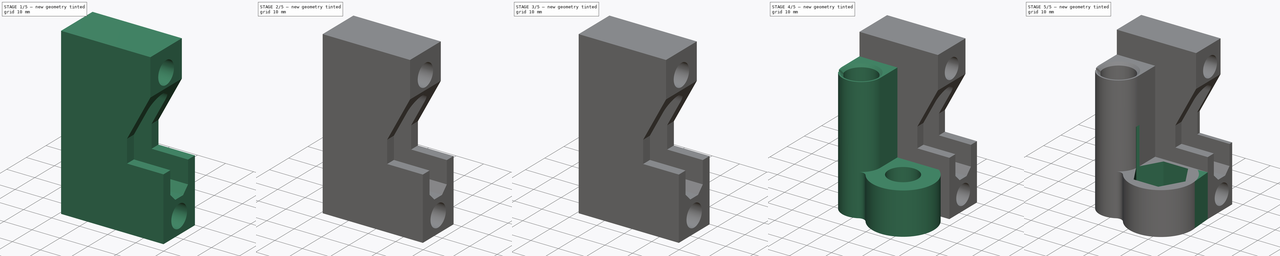
[diagram: build sequence overview — one tinted view per stage of 5, left to right]
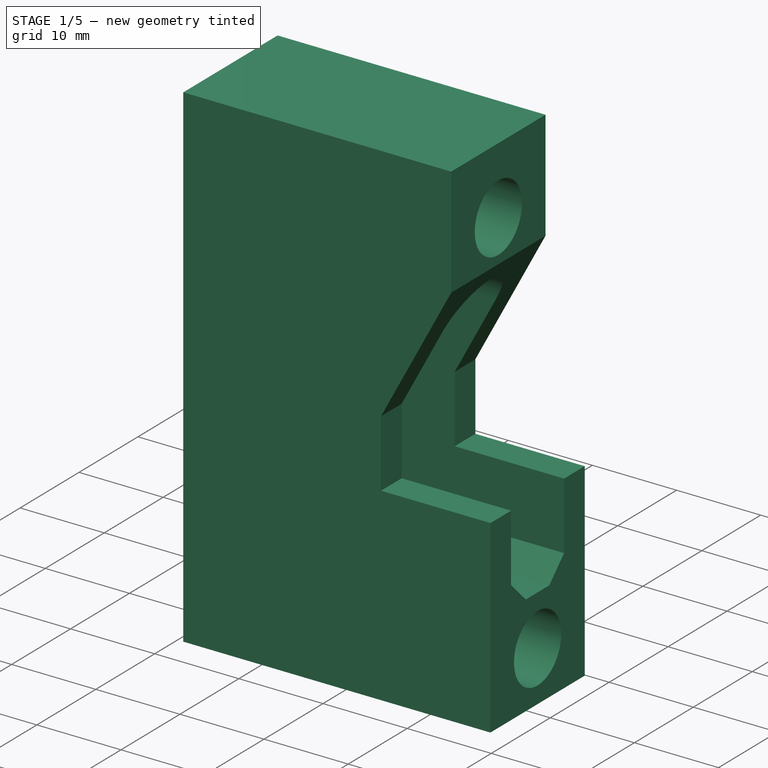
[diagram: stage 1 of 5 — iso view after this stage's code; geometry added in this stage tinted green]
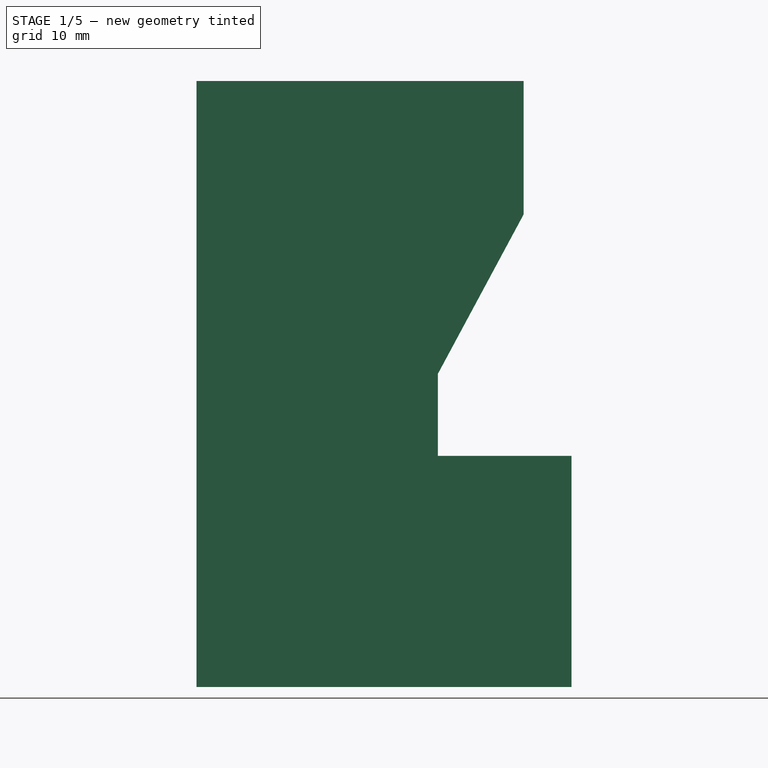
[diagram: stage 1 of 5 — front view after this stage's code; geometry added in this stage tinted green]
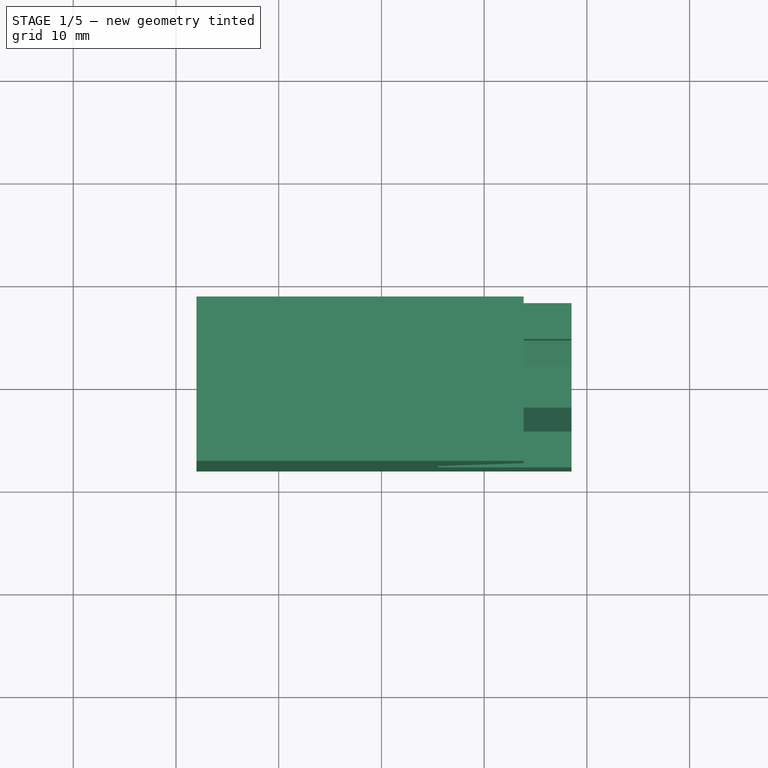
[diagram: stage 1 of 5 — top view after this stage's code; geometry added in this stage tinted green]
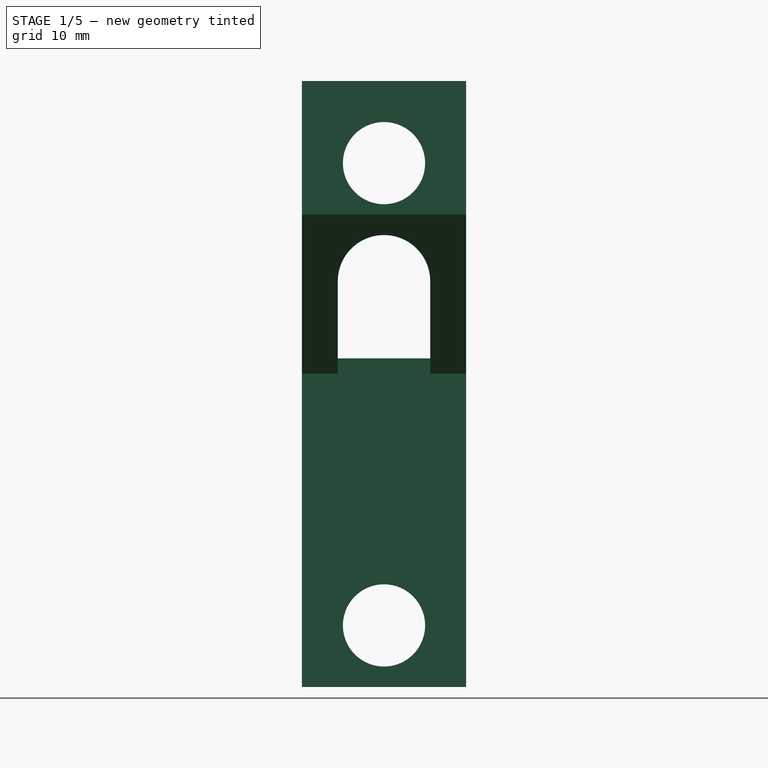
[diagram: stage 1 of 5 — right view after this stage's code; geometry added in this stage tinted green]
FCSTD DOCUMENT  (FreeCAD 0.15R4671 (Git))
Label: x-end-idler_felix_0.1
License: CC-BY 3.0
LicenseURL: http://creativecommons.org/licenses/by/3.0/
objects: Sketcher::SketchObject×12, PartDesign::Pocket×6, PartDesign::Pad×6, PartDesign::Chamfer×4, Part::Box×2, Part::MultiFuse×2, App::MeasureDistance×1
note: 44 computed .brp shape members not serialized (recipe doc carries the construction recipe); baked Part::Feature solids carry a one-line shape summary decoded from their .brp

FEATURE [Part::Box] Box  label="Cube"
  Height = 59
  Length = 36.5
  Placement = pos=(-18,-8,-28.5) rot=(0,0,1;0rad)
  Width = 16
FEATURE [Sketcher::SketchObject] Sketch
  Placement = pos=(18.5,-8,-28.5) rot=(0.57735,0.57735,0.57735;2.0944rad)
  Support = -> Box [Face2]
  sketch-geometry (8):
    g0: Circle CenterX=8 CenterY=51 CenterZ=0 NormalX=0 NormalY=0 NormalZ=1 Radius=4
    g1: Circle CenterX=8 CenterY=6 CenterZ=0 NormalX=0 NormalY=0 NormalZ=1 Radius=4
    g2: ArcOfCircle CenterX=8 CenterY=39.5 CenterZ=0 NormalX=0 NormalY=0 NormalZ=1 Radius=4.5 StartAngle=6.28318 EndAngle=9.42478
    g3: LineSegment StartX=3.5 StartY=39.5 StartZ=0 EndX=3.5 EndY=14.5 EndZ=0
    g4: LineSegment StartX=3.5 StartY=14.5 StartZ=0 EndX=6 EndY=12 EndZ=0
    g5: LineSegment StartX=6 StartY=12 StartZ=0 EndX=10 EndY=12 EndZ=0
    g6: LineSegment StartX=10 StartY=12 StartZ=0 EndX=12.5 EndY=14.5 EndZ=0
    g7: LineSegment StartX=12.5 StartY=14.5 StartZ=0 EndX=12.5 EndY=39.5 EndZ=0
  constraints (24):
    c: Equal(g0,g1)
    c: Radius(g0) = 4
    c: Tangent(g2,g3)
    c: Coincident(g3,g4)
    c: Coincident(g4,g5)
    c: Horizontal(g5)
    c: Coincident(g5,g6)
    c: Coincident(g6,g7)
    c: Coincident(g7,g2)
    c: Vertical(g7)
    c: Tangent(g7,g2)
    c: Vertical(g3)
    c: DistanceX(g0,g2) = 0
    c: DistanceX(g2,g1) = 0
    c: Angle(g5,g4) = 2.35619
    c: Equal(g4,g6)
    c: Angle(g6,g5) = 2.35619
    c: DistanceY(g-1,g1) = 6
    c: DistanceY(g0,g1) = -45
    c: Radius(g2) = 4.5
    c: DistanceX(g-2,g2) = 3.5
    c: Distance(g1,g5) = 6
    c: Distance(g5) = 4
    c: DistanceY(g2,g0) = 11.5
FEATURE [PartDesign::Pocket] Pocket
  Length = 5
  Placement = pos=(-18,-8,-28.5) rot=(0,0,1;0rad)
  Sketch = -> Sketch
  Type = 1
FEATURE [Sketcher::SketchObject] Sketch001
  Placement = pos=(-18,8,-28.5) rot=(0,0.707107,0.707107;3.14159rad)
  Support = -> Pocket [Face5]
  sketch-geometry (6):
    g0: LineSegment StartX=-36.5 StartY=59 StartZ=0 EndX=-36.5 EndY=22.5 EndZ=0
    g1: LineSegment StartX=-36.5 StartY=22.5 StartZ=0 EndX=-23.5 EndY=22.5 EndZ=0
    g2: LineSegment StartX=-23.5 StartY=22.5 StartZ=0 EndX=-23.5 EndY=30.5 EndZ=0
    g3: LineSegment StartX=-23.5 StartY=30.5 StartZ=0 EndX=-31.8373 EndY=46 EndZ=0
    g4: LineSegment StartX=-31.8373 StartY=46 StartZ=0 EndX=-31.8373 EndY=59 EndZ=0
    g5: LineSegment StartX=-31.8373 StartY=59 StartZ=0 EndX=-36.5 EndY=59 EndZ=0
  constraints (16):
    c: Coincident(g0,g1)
    c: Horizontal(g1)
    c: Coincident(g1,g2)
    c: Vertical(g2)
    c: Coincident(g2,g3)
    c: Coincident(g3,g4)
    c: Coincident(g4,g5)
    c: Vertical(g4)
    c: Distance(g2) = 8
    c: Distance(g3) = 17.6
    c: Distance(g4) = 13
    c: Distance(g1) = 13
    c: Coincident(g0,g5)
    c: Distance(g0) = 36.5
    c: Horizontal(g5)
    c: Vertical(g0)
FEATURE [PartDesign::Pocket] Pocket001
  Length = 5
  Placement = pos=(-18,-8,-28.5) rot=(0,0,1;0rad)
  Sketch = -> Sketch001
  Type = 1
FEATURE [Part::Box] Box001  label="Cube001"
  Height = 21
  Length = 2
  Placement = pos=(-18,-5,-17.5) rot=(0,0,1;0rad)
  Width = 10
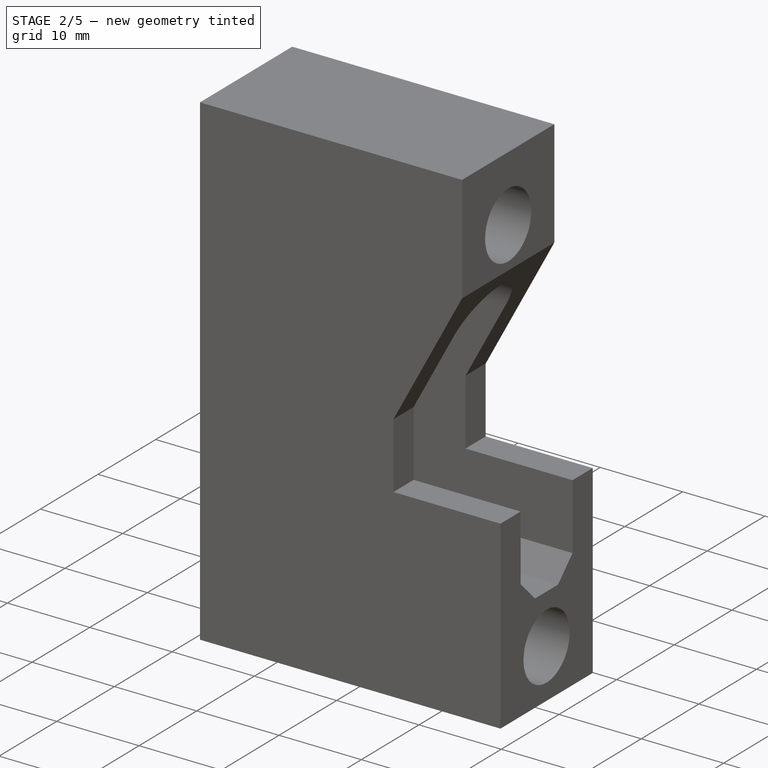
[diagram: stage 2 of 5 — iso view after this stage's code; geometry added in this stage tinted green]
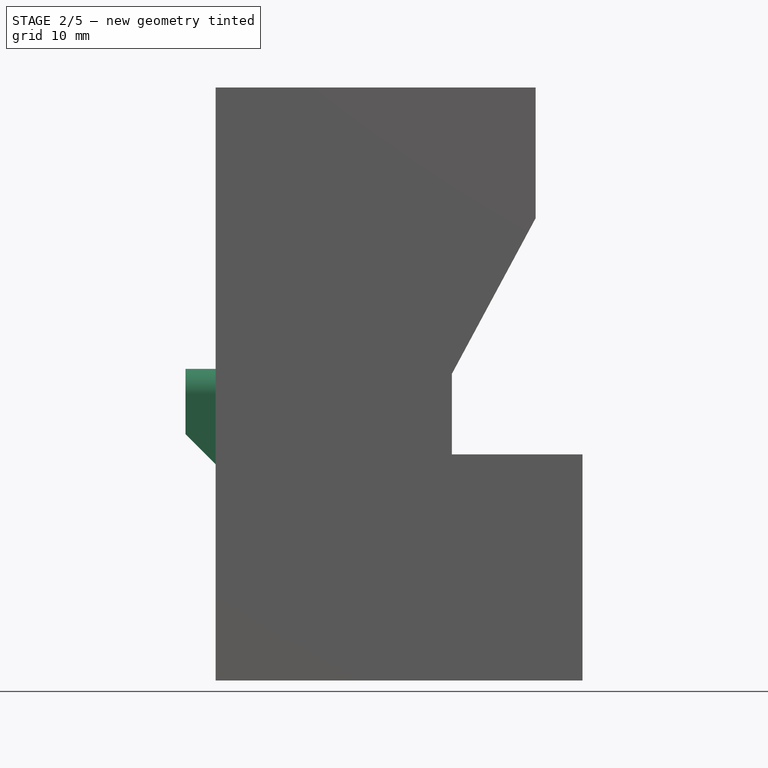
[diagram: stage 2 of 5 — front view after this stage's code; geometry added in this stage tinted green]
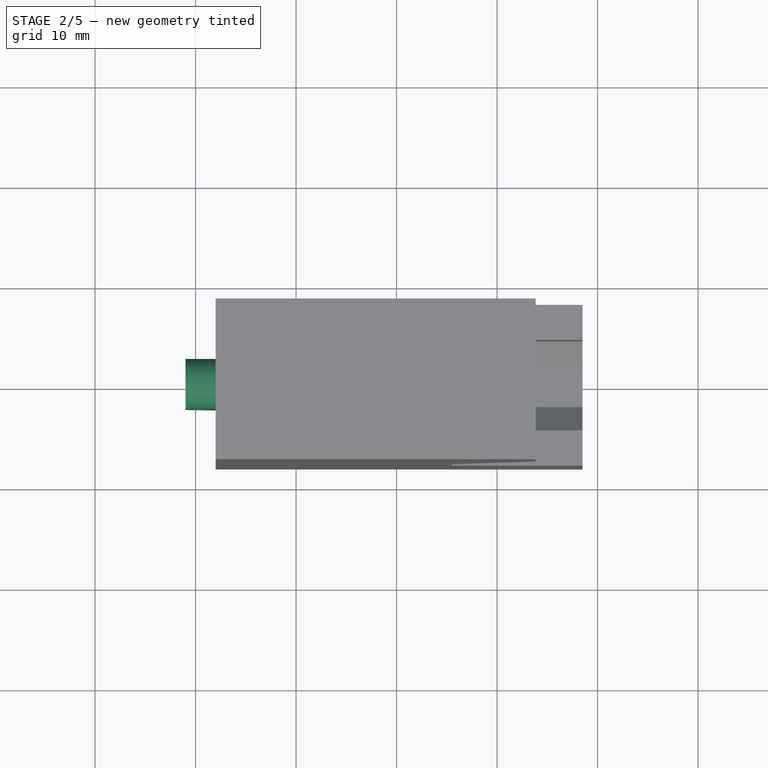
[diagram: stage 2 of 5 — top view after this stage's code; geometry added in this stage tinted green]
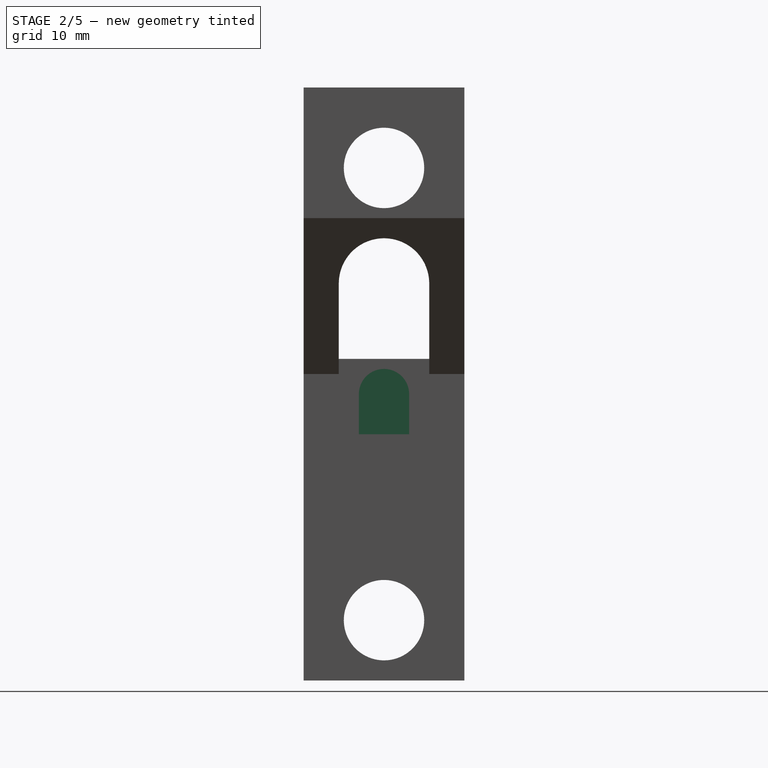
[diagram: stage 2 of 5 — right view after this stage's code; geometry added in this stage tinted green]
FEATURE [Part::MultiFuse] Fusion
  Shapes = -> [Box001,Pocket001]
FEATURE [Sketcher::SketchObject] Sketch003
  Placement = pos=(-18,0,0) rot=(0.57735,-0.57735,-0.57735;2.0944rad)
  Support = -> Fusion [Face24]
  sketch-geometry (4):
    g0: LineSegment StartX=-2.5 StartY=0 StartZ=0 EndX=-2.5 EndY=-4 EndZ=0
    g1: LineSegment StartX=-2.5 StartY=-4 StartZ=0 EndX=2.5 EndY=-4 EndZ=0
    g2: LineSegment StartX=2.5 StartY=-4 StartZ=0 EndX=2.5 EndY=0 EndZ=0
    g3: ArcOfCircle CenterX=0 CenterY=0 CenterZ=0 NormalX=0 NormalY=0 NormalZ=1 Radius=2.5 StartAngle=0 EndAngle=3.14159
  constraints (10):
    c: Vertical(g0)
    c: Coincident(g0,g1)
    c: Horizontal(g1)
    c: Coincident(g1,g2)
    c: Vertical(g2)
    c: Tangent(g3,g2)
    c: Tangent(g3,g0)
    c: Coincident(g3,g-1)
    c: Radius(g3) = 2.5
    c: Distance(g-1,g1) = 4
FEATURE [PartDesign::Pad] Pad
  Length = 3
  Length2 = 100
  Sketch = -> Sketch003
  Type = 0
FEATURE [Sketcher::SketchObject] Sketch004
  Placement = pos=(-16,0,0) rot=(0.57735,0.57735,0.57735;2.0944rad)
  Support = -> Pad [Face10]
  sketch-geometry (4):
    g0: ArcOfCircle CenterX=0 CenterY=0 CenterZ=0 NormalX=0 NormalY=0 NormalZ=1 Radius=2.5 StartAngle=0 EndAngle=3.14159
    g1: LineSegment StartX=-2.5 StartY=0 StartZ=0 EndX=-2.5 EndY=-4 EndZ=0
    g2: LineSegment StartX=-2.5 StartY=-4 StartZ=0 EndX=2.5 EndY=-4 EndZ=0
    g3: LineSegment StartX=2.5 StartY=-4 StartZ=0 EndX=2.5 EndY=0 EndZ=0
  constraints (11):
    c: Coincident(g0,g-1)
    c: PointOnObject(g0,g-1)
    c: PointOnObject(g0,g-1)
    c: Radius(g0) = 2.5
    c: Tangent(g0,g1)
    c: Coincident(g1,g2)
    c: Horizontal(g2)
    c: Coincident(g2,g3)
    c: Coincident(g3,g0)
    c: Vertical(g3)
    c: Distance(g-1,g2) = 4
FEATURE [PartDesign::Pad] Pad001
  Length = 3
  Length2 = 100
  Sketch = -> Sketch004
  Type = 0
FEATURE [PartDesign::Chamfer] Chamfer
  Base = -> Pad001 [Edge8]
  Size = 2.999
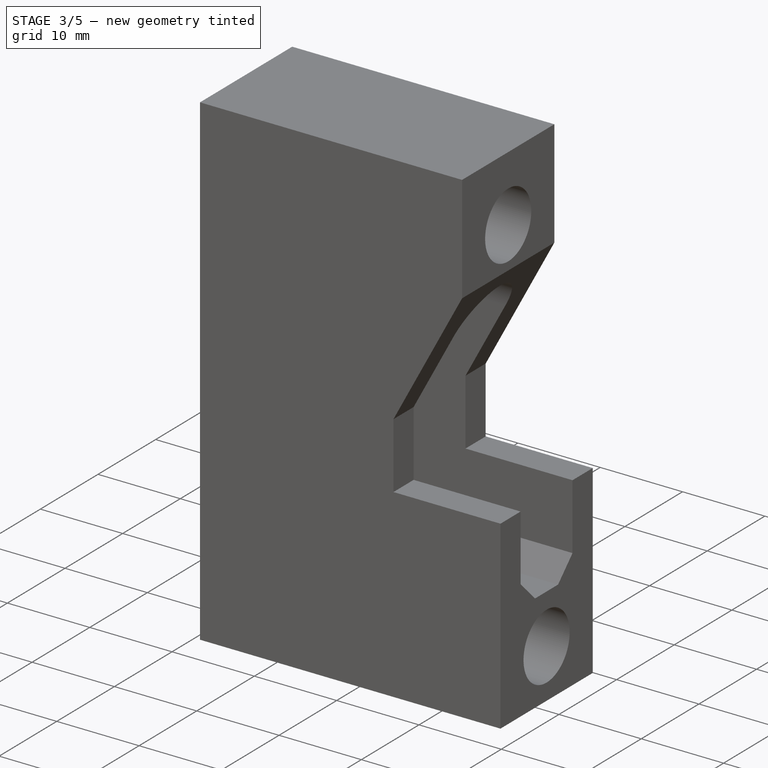
[diagram: stage 3 of 5 — iso view after this stage's code; geometry added in this stage tinted green]
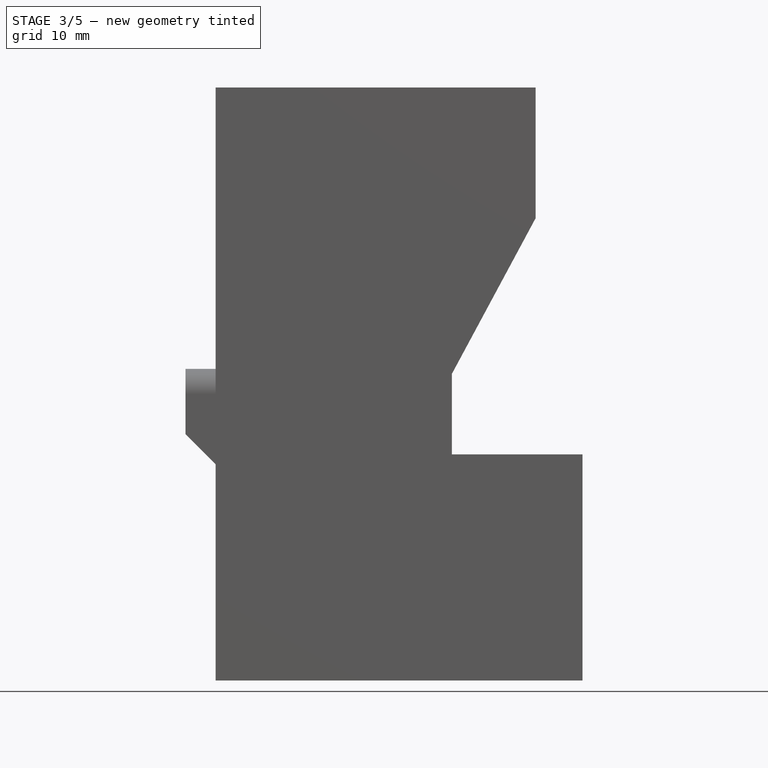
[diagram: stage 3 of 5 — front view after this stage's code; geometry added in this stage tinted green]
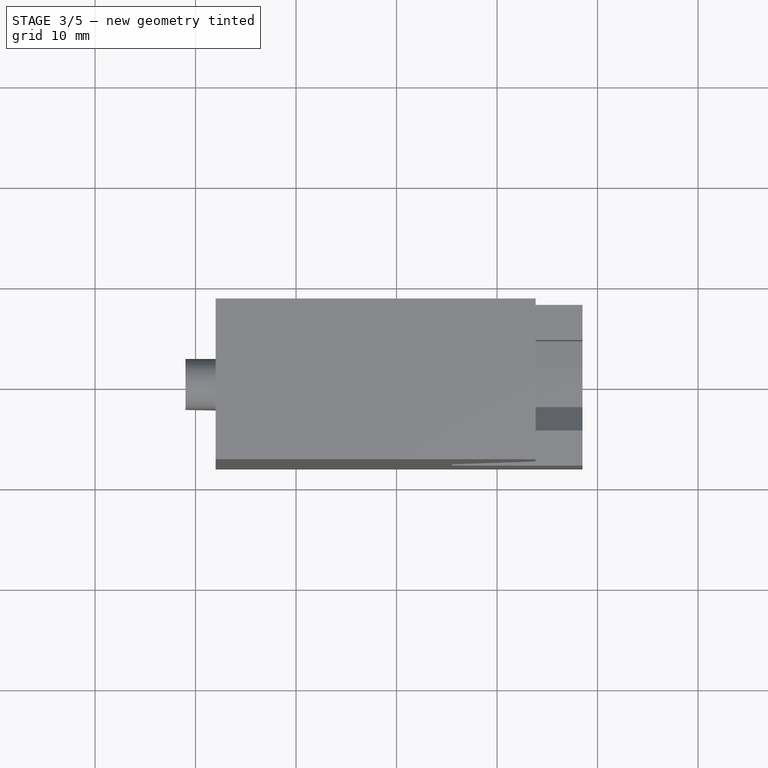
[diagram: stage 3 of 5 — top view after this stage's code; geometry added in this stage tinted green]
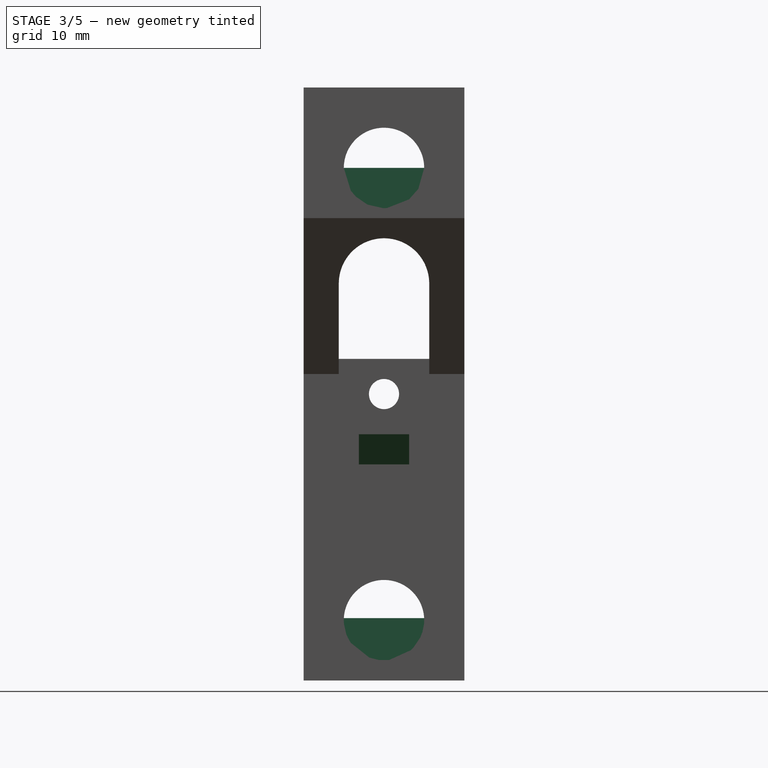
[diagram: stage 3 of 5 — right view after this stage's code; geometry added in this stage tinted green]
FEATURE [PartDesign::Chamfer] Chamfer001
  Base = -> Chamfer [Edge44]
  Size = 2.999
FEATURE [Sketcher::SketchObject] Sketch005
  Placement = pos=(-21,0,0) rot=(0.57735,-0.57735,-0.57735;2.0944rad)
  Support = -> Chamfer001 [Face36]
  sketch-geometry (1):
    g0: Circle CenterX=0 CenterY=0 CenterZ=0 NormalX=0 NormalY=0 NormalZ=1 Radius=1.5
  constraints (2):
    c: Coincident(g0,g-1)
    c: Radius(g0) = 1.5
FEATURE [PartDesign::Pocket] Pocket002
  Length = 5
  Sketch = -> Sketch005
  Type = 1
FEATURE [Sketcher::SketchObject] Sketch006
  ExternalGeometry = -> [Pocket002]
  Placement = pos=(-18,0,0) rot=(0.57735,-0.57735,-0.57735;2.0944rad)
  Support = -> Pocket002 [Face16]
  sketch-geometry (8):
    g0: LineSegment StartX=-5 StartY=22.5 StartZ=0 EndX=5 EndY=22.5 EndZ=0
    g1: LineSegment StartX=5 StartY=22.5 StartZ=0 EndX=5 EndY=18 EndZ=0
    g2: LineSegment StartX=5 StartY=18 StartZ=0 EndX=-5 EndY=18 EndZ=0
    g3: LineSegment StartX=-5 StartY=18 StartZ=0 EndX=-5 EndY=22.5 EndZ=0
    g4: LineSegment StartX=-5 StartY=-22.3 StartZ=0 EndX=5 EndY=-22.3 EndZ=0
    g5: LineSegment StartX=5 StartY=-22.3 StartZ=0 EndX=5 EndY=-26.8 EndZ=0
    g6: LineSegment StartX=5 StartY=-26.8 StartZ=0 EndX=-5 EndY=-26.8 EndZ=0
    g7: LineSegment StartX=-5 StartY=-26.8 StartZ=0 EndX=-5 EndY=-22.3 EndZ=0
  constraints (24):
    c: Coincident(g0,g1)
    c: Coincident(g1,g2)
    c: Coincident(g2,g3)
    c: Coincident(g3,g0)
    c: Horizontal(g0)
    c: Horizontal(g2)
    c: Vertical(g1)
    c: Vertical(g3)
    c: Coincident(g4,g5)
    c: Coincident(g5,g6)
    c: Coincident(g6,g7)
    c: Coincident(g7,g4)
    c: Horizontal(g4)
    c: Horizontal(g6)
    c: Vertical(g5)
    c: Vertical(g7)
    c: Equal(g5,g1)
    c: Equal(g2,g6)
    c: DistanceX(g-2,g2) = -5
    c: DistanceX(g-2,g1) = 5
    c: Distance(g-1,g2) = 18
    c: Distance(g1) = 4.5
    c: PointOnObject(g4,g3)
    c: Distance(g5,g-3) = 1.7
FEATURE [PartDesign::Pad] Pad002
  Length = 2
  Length2 = 100
  Reversed = true
  Sketch = -> Sketch006
  Type = 0
FEATURE [Sketcher::SketchObject] Sketch007
  ExternalGeometry = -> [Pad002]
  Placement = pos=(-18,0,0) rot=(0.57735,-0.57735,-0.57735;2.0944rad)
  Support = -> Pad002 [Face16]
  sketch-geometry (10):
    g0: LineSegment StartX=-1.52743 StartY=26.5196 StartZ=0 EndX=0 EndY=27.1 EndZ=0
    g1: LineSegment StartX=0 StartY=27.1 StartZ=0 EndX=1.52743 EndY=26.5196 EndZ=0
    g2: LineSegment StartX=-1.52743 StartY=-18.4804 StartZ=0 EndX=0 EndY=-17.9 EndZ=0
    g3: LineSegment StartX=0 StartY=-17.9 StartZ=0 EndX=1.52743 EndY=-18.4804 EndZ=0
    g4: ArcOfCircle CenterX=0 CenterY=-22.5 CenterZ=0 NormalX=0 NormalY=0 NormalZ=1 Radius=4.3 StartAngle=1.93394 EndAngle=3.09506
    g5: ArcOfCircle CenterX=0 CenterY=-22.5 CenterZ=0 NormalX=0 NormalY=0 NormalZ=1 Radius=4.3 StartAngle=0.0465284 EndAngle=1.20765
    g6: LineSegment StartX=-4.29535 StartY=-22.3 StartZ=0 EndX=4.29535 EndY=-22.3 EndZ=0
    g7: ArcOfCircle CenterX=0 CenterY=22.5 CenterZ=0 NormalX=0 NormalY=0 NormalZ=1 Radius=4.3 StartAngle=1.93394 EndAngle=3.14159
    g8: ArcOfCircle CenterX=0 CenterY=22.5 CenterZ=0 NormalX=0 NormalY=0 NormalZ=1 Radius=4.3 StartAngle=0 EndAngle=1.20765
    g9: LineSegment StartX=-4.3 StartY=22.5 StartZ=0 EndX=4.3 EndY=22.5 EndZ=0
  constraints (30):
    c: PointOnObject(g0,g-2)
    c: Coincident(g1,g0)
    c: PointOnObject(g2,g-2)
    c: Coincident(g3,g2)
    c: Coincident(g4,g-3)
    c: Coincident(g2,g4)
    c: Tangent(g2,g4)
    c: Coincident(g5,g3)
    c: Tangent(g3,g5)
    c: DistanceY(g2,g4) = -4.6
    c: Radius(g4) = 4.3
    c: Radius(g5) = 4.3
    c: Coincident(g6,g4)
    c: Coincident(g6,g5)
    c: Horizontal(g6)
    c: PointOnObject(g-3,g6)
    c: Coincident(g5,g4)
    c: Coincident(g7,g-4)
    c: Coincident(g8,g7)
    c: Coincident(g9,g7)
    c: Coincident(g9,g8)
    c: Horizontal(g9)
    c: PointOnObject(g-4,g9)
    c: Coincident(g7,g0)
    c: Coincident(g1,g8)
    c: Tangent(g0,g7)
    c: Tangent(g1,g8)
    c: Radius(g8) = 4.3
    c: Radius(g7) = 4.3
    c: DistanceY(g0,g7) = -4.6
FEATURE [PartDesign::Pocket] Pocket003
  Length = 2
  Sketch = -> Sketch007
  Type = 0
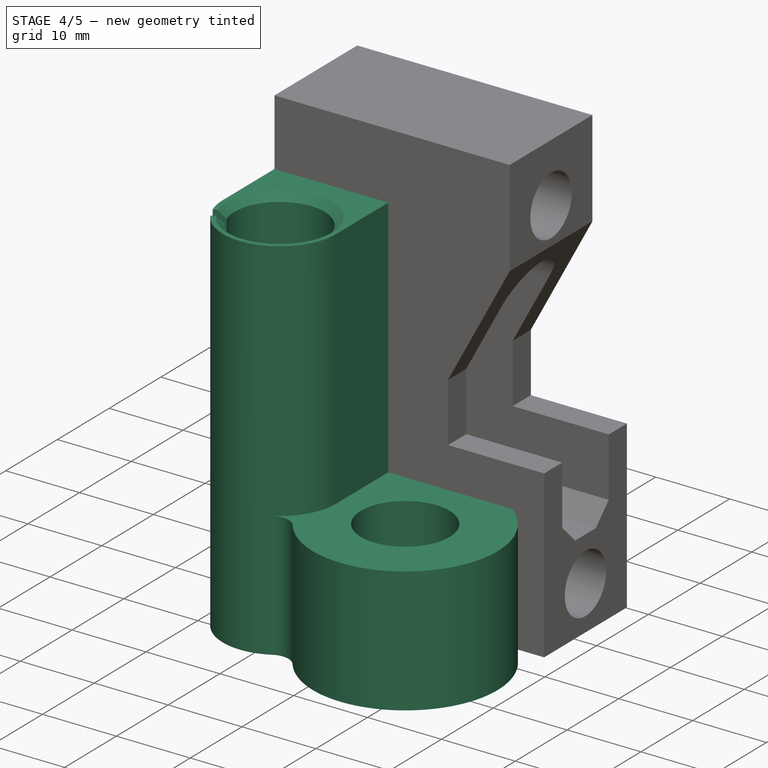
[diagram: stage 4 of 5 — iso view after this stage's code; geometry added in this stage tinted green]
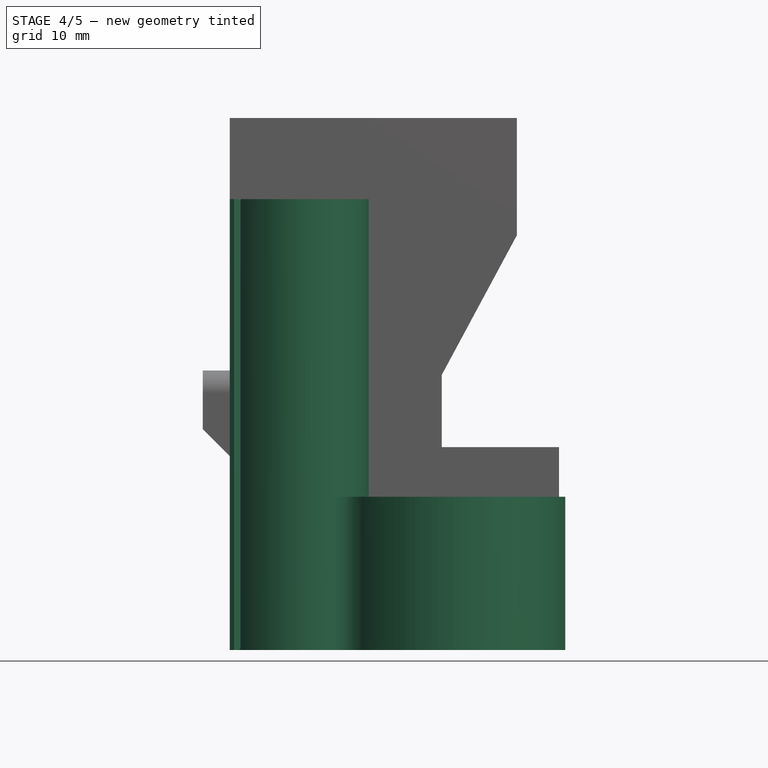
[diagram: stage 4 of 5 — front view after this stage's code; geometry added in this stage tinted green]
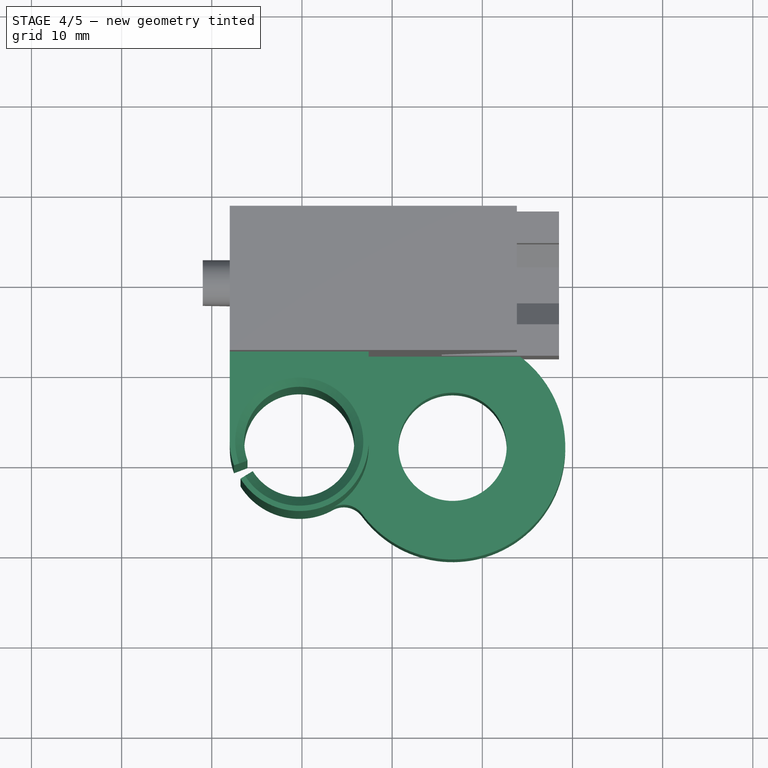
[diagram: stage 4 of 5 — top view after this stage's code; geometry added in this stage tinted green]
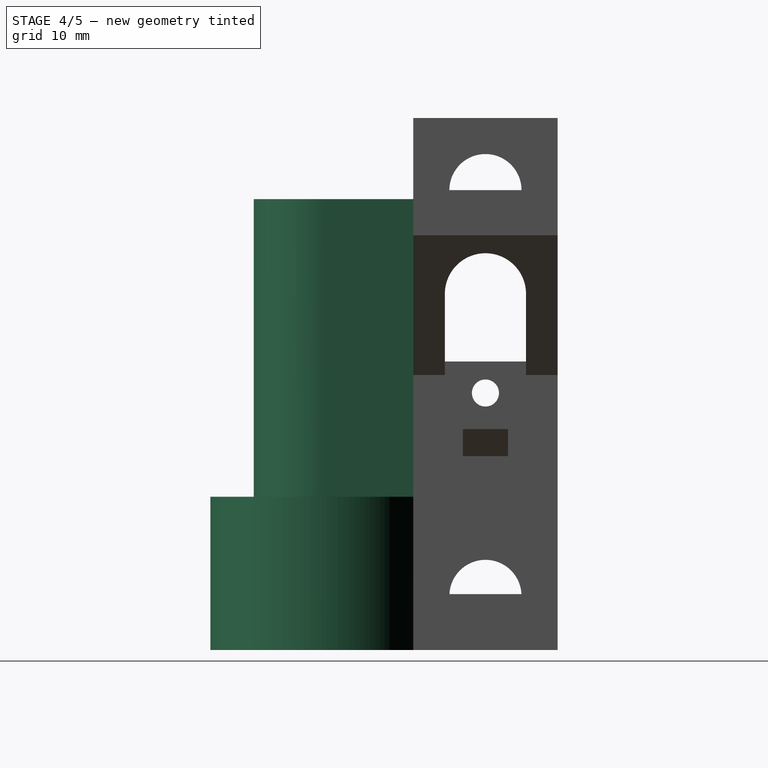
[diagram: stage 4 of 5 — right view after this stage's code; geometry added in this stage tinted green]
FEATURE [Sketcher::SketchObject] Sketch009
  ExternalGeometry = -> [Pocket003]
  Placement = pos=(0,0,-28.5) rot=(1,0,0;3.14159rad)
  Support = -> Pocket003 [Face31]
  sketch-geometry (8):
    g0: ArcOfCircle CenterX=-10.3 CenterY=18 CenterZ=0 NormalX=0 NormalY=0 NormalZ=1 Radius=7.7 StartAngle=2.79253 EndAngle=3.1416
    g1: LineSegment StartX=-18 StartY=18 StartZ=0 EndX=-18 EndY=8 EndZ=0
    g2: ArcOfCircle CenterX=-10.3 CenterY=18 CenterZ=0 NormalX=0 NormalY=0 NormalZ=1 Radius=6.1 StartAngle=2.79253 EndAngle=8.86219
    g3: LineSegment StartX=-17.5356 StartY=20.6336 StartZ=0 EndX=-16.0321 EndY=20.0863 EndZ=0
    g4: ArcOfCircle CenterX=-10.3 CenterY=18 CenterZ=0 NormalX=0 NormalY=0 NormalZ=1 Radius=7.7 StartAngle=6.28318 EndAngle=8.86219
    g5: LineSegment StartX=-16.8133 StartY=22.107 StartZ=0 EndX=-15.4599 EndY=21.2536 EndZ=0
    g6: LineSegment StartX=-2.6 StartY=18 StartZ=0 EndX=-2.6 EndY=8 EndZ=0
    g7: ArcOfCircle CenterX=-10.3 CenterY=28 CenterZ=0 NormalX=0 NormalY=0 NormalZ=1 Radius=21.4311 StartAngle=4.34488 EndAngle=5.0799
  constraints (25):
    c: Coincident(g1,g0)
    c: Vertical(g1)
    c: Tangent(g1,g0)
    c: Coincident(g1,g-3)
    c: Coincident(g2,g0)
    c: Coincident(g3,g0)
    c: Coincident(g3,g2)
    c: Coincident(g4,g0)
    c: Equal(g4,g0)
    c: Distance(g3) = 1.6
    c: Perpendicular(g3,g0)
    c: Coincident(g5,g4)
    c: Coincident(g5,g2)
    c: Perpendicular(g5,g4)
    c: Distance(g2,g2) = 1.3
    c: Radius(g2) = 6.1
    c: Distance(g0,g-3) = 10
    c: Coincident(g6,g4)
    c: Vertical(g6)
    c: Tangent(g6,g4)
    c: Angle(g-3,g3) = 2.79253
    c: PointOnObject(g6,g-3)
    c: Coincident(g7,g1)
    c: Coincident(g7,g6)
    c: DistanceY(g0,g7) = 10
FEATURE [PartDesign::Pad] Pad003
  Length = 50
  Length2 = 100
  Reversed = true
  Sketch = -> Sketch009
  Type = 0
FEATURE [PartDesign::Chamfer] Chamfer002
  Base = -> Pad003 [Edge162]
  Size = 1
FEATURE [PartDesign::Chamfer] Chamfer003
  Base = -> Chamfer002 [Edge34]
  Size = 1
FEATURE [Sketcher::SketchObject] Sketch010
  ExternalGeometry = -> [Chamfer003]
  Placement = pos=(0,0,-28.5) rot=(1,0,0;3.14159rad)
  Support = -> Chamfer003 [Face15]
  sketch-geometry (7):
    g0: LineSegment [constr] StartX=-10.3 StartY=18 StartZ=0 EndX=6.7 EndY=18 EndZ=0
    g1: ArcOfCircle CenterX=6.7 CenterY=18 CenterZ=0 NormalX=0 NormalY=0 NormalZ=1 Radius=12.5 StartAngle=5.35589 EndAngle=8.78771
    g2: ArcOfCircle CenterX=-5.35765 CenterY=26.9226 CenterZ=0 NormalX=0 NormalY=0 NormalZ=1 Radius=2.5 StartAngle=4.20654 EndAngle=5.64612
    g3: ArcOfCircle CenterX=-10.3 CenterY=18 CenterZ=0 NormalX=0 NormalY=0 NormalZ=1 Radius=7.7 StartAngle=6.28318 EndAngle=7.34814
    g4: LineSegment StartX=-2.6 StartY=18 StartZ=0 EndX=-2.6 EndY=8 EndZ=0
    g5: Circle CenterX=6.7 CenterY=18 CenterZ=0 NormalX=0 NormalY=0 NormalZ=1 Radius=6
    g6: LineSegment StartX=-2.6 StartY=8 StartZ=0 EndX=14.2 EndY=8 EndZ=0
  constraints (19):
    c: Coincident(g0,g-3)
    c: Horizontal(g0)
    c: Coincident(g2,g1)
    c: Tangent(g1,g2)
    c: Radius(g2) = 2.5
    c: Coincident(g3,g0)
    c: Coincident(g3,g-4)
    c: Coincident(g2,g3)
    c: Tangent(g2,g-4)
    c: Coincident(g0,g1)
    c: Distance(g0) = 17
    c: Coincident(g4,g3)
    c: Coincident(g5,g0)
    c: Radius(g5) = 6
    c: Coincident(g6,g4)
    c: Coincident(g6,g1)
    c: Radius(g1) = 12.5
    c: PointOnObject(g1,g-5)
    c: Coincident(g4,g-5)
FEATURE [PartDesign::Pad] Pad004
  Length = 17
  Length2 = 100
  Reversed = true
  Sketch = -> Sketch010
  Type = 0
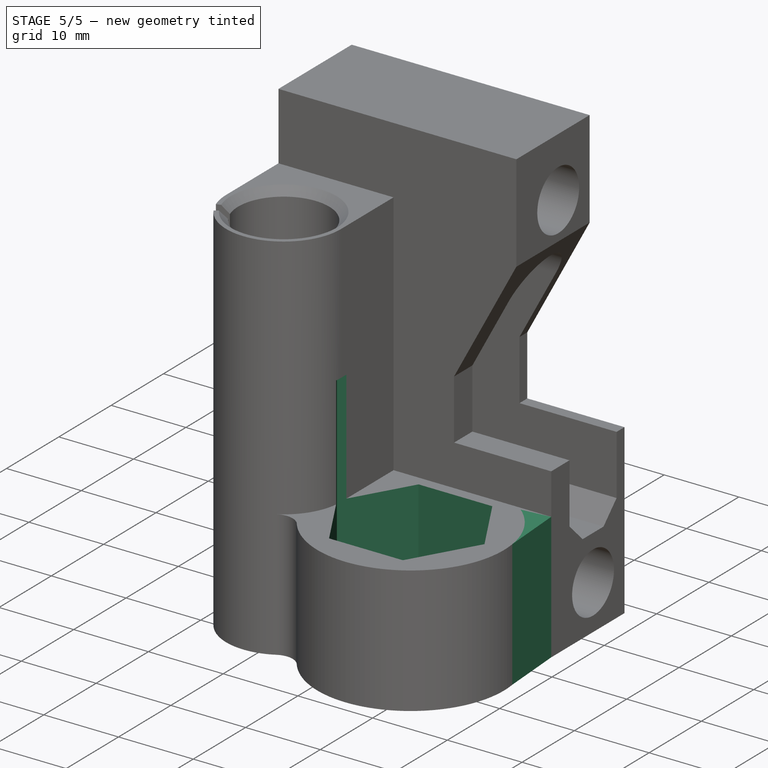
[diagram: stage 5 of 5 — iso view after this stage's code; geometry added in this stage tinted green]
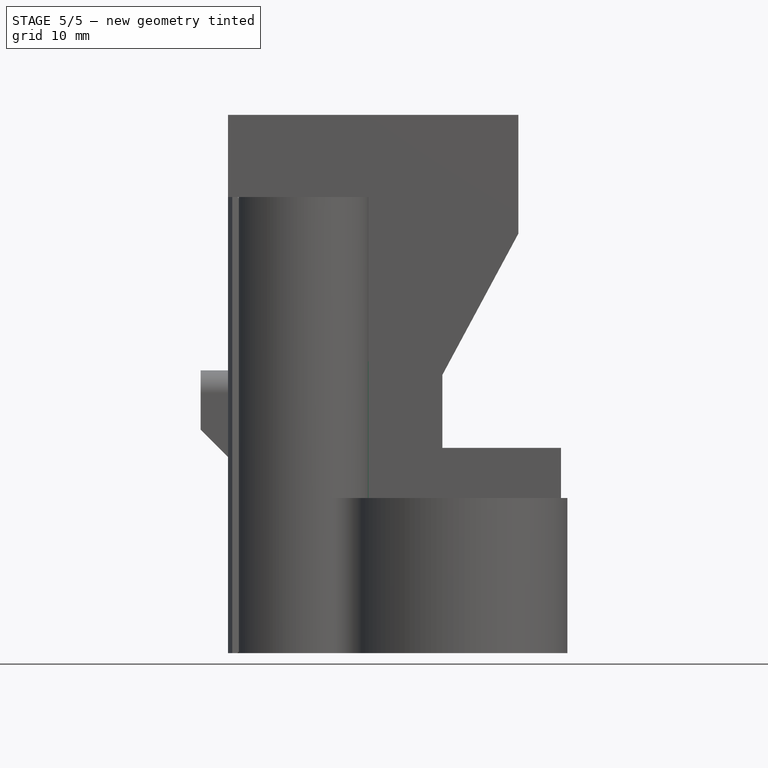
[diagram: stage 5 of 5 — front view after this stage's code; geometry added in this stage tinted green]
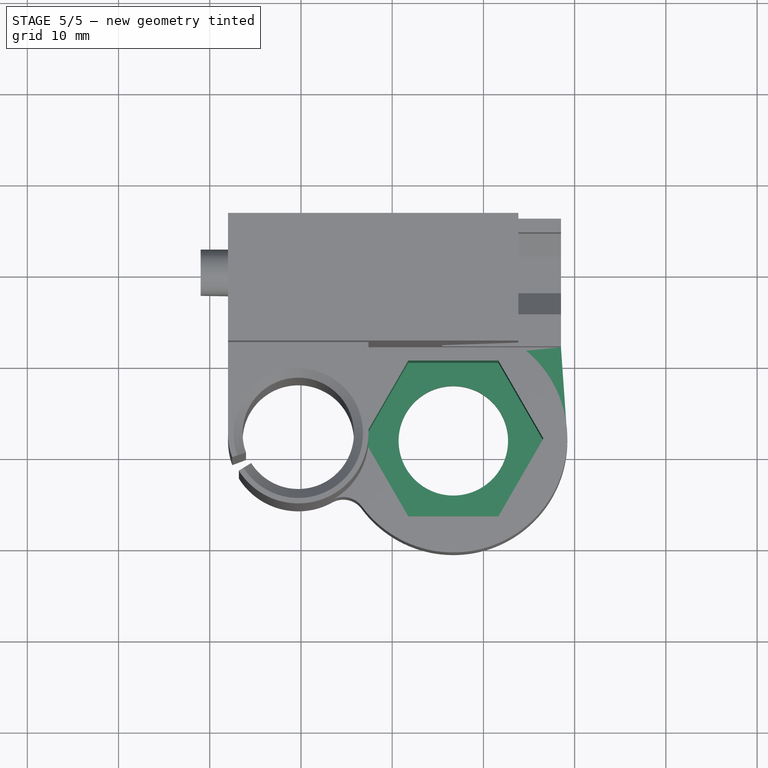
[diagram: stage 5 of 5 — top view after this stage's code; geometry added in this stage tinted green]
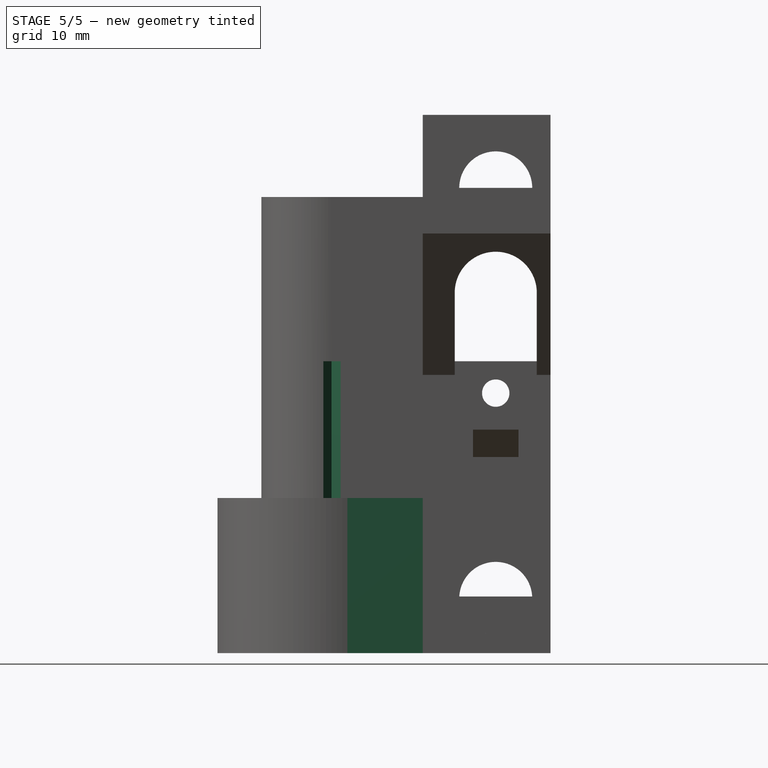
[diagram: stage 5 of 5 — right view after this stage's code; geometry added in this stage tinted green]
FEATURE [Sketcher::SketchObject] Sketch011
  ExternalGeometry = -> [Pad004]
  Placement = pos=(0,0,-11.5) rot=(0,0,1;0rad)
  Support = -> Pad004 [Face3]
  sketch-geometry (7):
    g0: LineSegment StartX=11.6363 StartY=-26.55 StartZ=0 EndX=16.5727 EndY=-18 EndZ=0
    g1: LineSegment StartX=16.5727 StartY=-18 StartZ=0 EndX=11.6363 EndY=-9.45 EndZ=0
    g2: LineSegment StartX=11.6363 StartY=-9.45 StartZ=0 EndX=1.76366 EndY=-9.45 EndZ=0
    g3: LineSegment StartX=1.76366 StartY=-9.45 StartZ=0 EndX=-3.17269 EndY=-18 EndZ=0
    g4: LineSegment StartX=-3.17269 StartY=-18 StartZ=0 EndX=1.76366 EndY=-26.55 EndZ=0
    g5: LineSegment StartX=1.76366 StartY=-26.55 StartZ=0 EndX=11.6363 EndY=-26.55 EndZ=0
    g6: Circle [constr] CenterX=6.7 CenterY=-18 CenterZ=0 NormalX=0 NormalY=0 NormalZ=1 Radius=9.87269
  constraints (17):
    c: Coincident(g0,g1)
    c: Coincident(g1,g2)
    c: Coincident(g2,g3)
    c: Coincident(g3,g4)
    c: Coincident(g4,g5)
    c: Coincident(g5,g0)
    c: Equal(g0, g1-g5) x5
    c: PointOnObject(g0,g6)
    c: PointOnObject(g1,g6)
    c: PointOnObject(g2,g6)
    c: PointOnObject(g3,g6)
    c: PointOnObject(g4,g6)
    c: PointOnObject(g5,g6)
    c: Coincident(g3,g-3)
    c: Distance(g0,g2) = 17.1
    c: Horizontal(g2)
    c: Coincident(g-3,g6)
FEATURE [PartDesign::Pocket] Pocket004
  Length = 30
  Midplane = true
  Sketch = -> Sketch011
  Type = 0
FEATURE [App::MeasureDistance] Distance  label="Distance: 0.617"
  Distance = 0.616582
  P1 = (-3.21657,-18.0043,-11.5)
  P2 = (-2.6,-18,-11.5)
FEATURE [Sketcher::SketchObject] Sketch012
  Placement = pos=(0,0,-28.5) rot=(1,0,0;3.14159rad)
  sketch-geometry (4):
    g0: LineSegment [constr] StartX=6.7 StartY=18 StartZ=0 EndX=19.2 EndY=18 EndZ=0
    g1: LineSegment StartX=19.2 StartY=18 StartZ=0 EndX=18.5 EndY=8 EndZ=0
    g2: LineSegment StartX=18.5 StartY=8 StartZ=0 EndX=14.2 EndY=8 EndZ=0
    g3: LineSegment StartX=19.2 StartY=18 StartZ=0 EndX=14.2 EndY=8 EndZ=0
  constraints (6):
    c: Horizontal(g0)
    c: DistanceX(g0,g0) = 12.5
    c: Coincident(g1,g0)
    c: Coincident(g2,g1)
    c: Coincident(g3,g2)
    c: Coincident(g3,g0)
FEATURE [PartDesign::Pad] Pad005
  Length = 17
  Length2 = 100
  Placement = pos=(0,0,-28.5) rot=(1,0,0;3.14159rad)
  Reversed = true
  Sketch = -> Sketch012
  Type = 0
FEATURE [Sketcher::SketchObject] Sketch013
  ExternalGeometry = -> [Pocket004]
  Placement = pos=(0,0,-28.5) rot=(1,0,0;3.14159rad)
  Support = -> Pocket004 [Face5]
  sketch-geometry (4):
    g0: LineSegment StartX=18.5 StartY=-8 StartZ=0 EndX=-18 EndY=-8 EndZ=0
    g1: LineSegment StartX=-18 StartY=-8 StartZ=0 EndX=-18 EndY=-6 EndZ=0
    g2: LineSegment StartX=-18 StartY=-6 StartZ=0 EndX=18.5 EndY=-6 EndZ=0
    g3: LineSegment StartX=18.5 StartY=-6 StartZ=0 EndX=18.5 EndY=-8 EndZ=0
  constraints (11):
    c: Coincident(g0,g1)
    c: Coincident(g1,g2)
    c: Coincident(g2,g3)
    c: Coincident(g3,g0)
    c: Horizontal(g0)
    c: Horizontal(g2)
    c: Vertical(g1)
    c: Vertical(g3)
    c: Coincident(g0,g-3)
    c: Coincident(g0,g-3)
    c: Distance(g2,g0) = 2
FEATURE [PartDesign::Pocket] Pocket005
  Length = 5
  Sketch = -> Sketch013
  Type = 1
FEATURE [Part::MultiFuse] Fusion001
  Shapes = -> [Pocket005,Pad005]
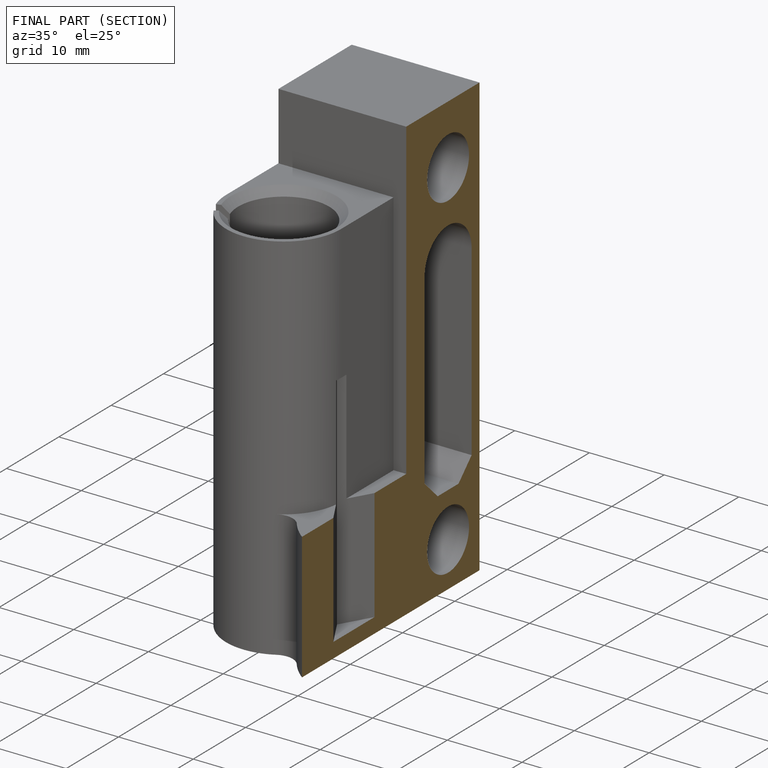
[diagram: finished part — half-section view (interior)]
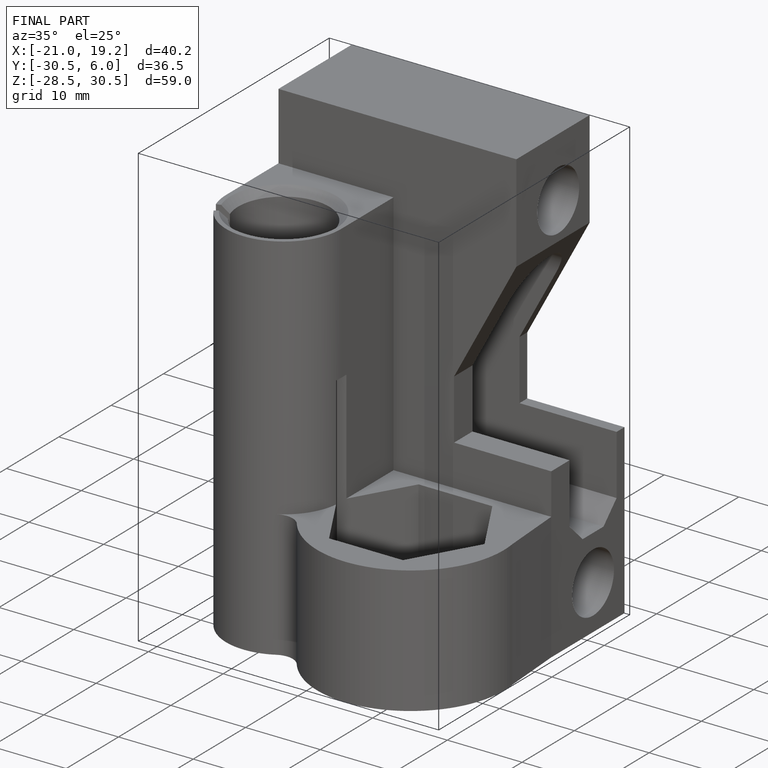
[diagram: finished part — iso view with bounding-box wireframe]
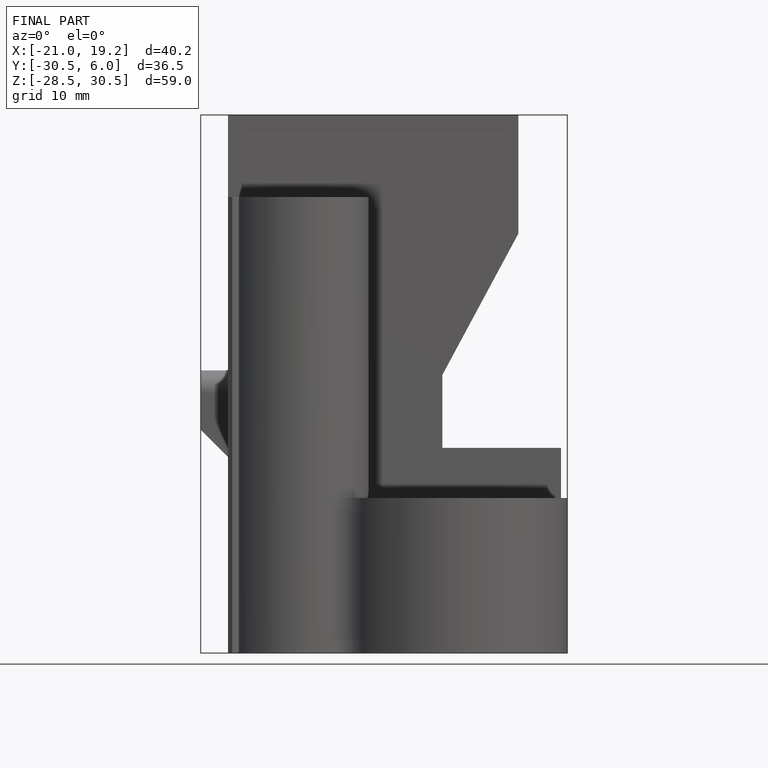
[diagram: finished part — front view with bounding-box wireframe]
